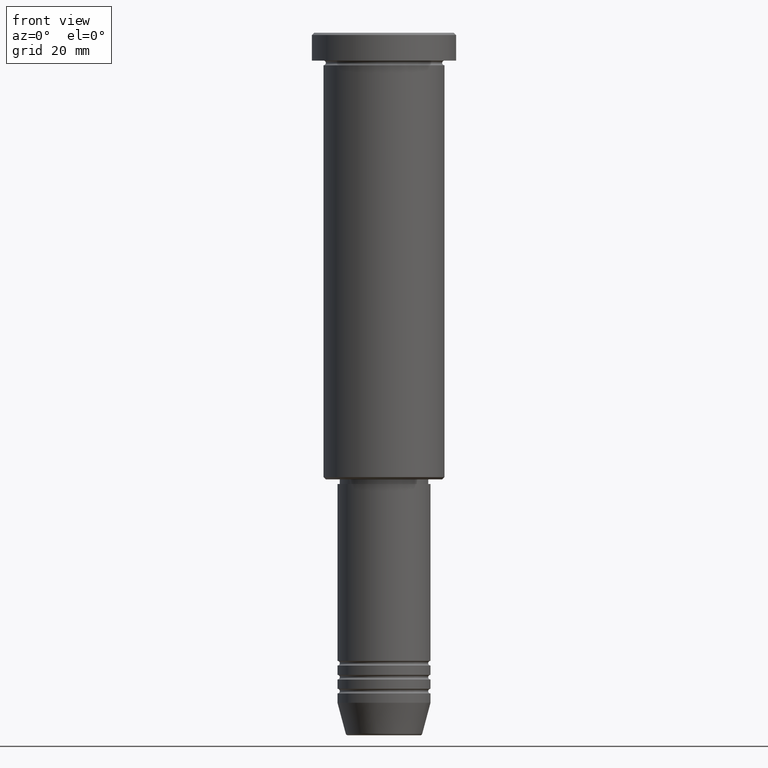
[diagram: clean part render]
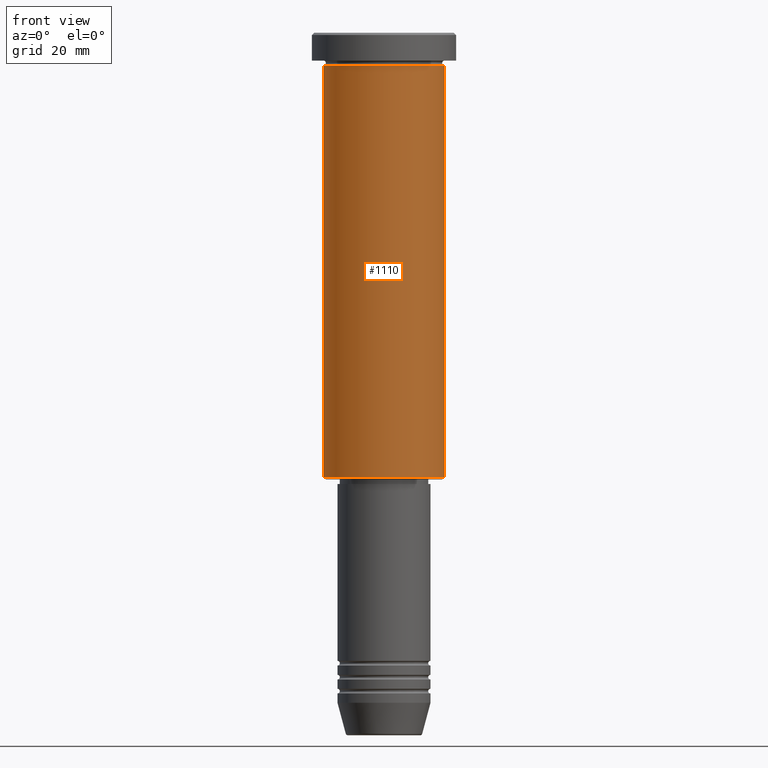
[diagram: same view with one face highlighted and labeled with its STEP entity id]
A machine part, front view. The second image highlights one B-rep face of the part: STEP entity #1110.
In plain terms, the highlighted cylindrical surface (partial cylindrical patch) has radius 13 mm, axis along (-0, -0, 1).
Its self-contained STEP definition (entity closure, byte-faithful):
#18 = EDGE_CURVE ( 'NONE', #555, #154, #625, .T. ) ;
#101 = CARTESIAN_POINT ( 'NONE',  ( -13.00000000000000000, 1.592040838891559095E-15, 0.000000000000000000 ) ) ;
#106 = CARTESIAN_POINT ( 'NONE',  ( 0.000000000000000000, 0.000000000000000000, -6.999999999999995559 ) ) ;
#142 = DIRECTION ( 'NONE',  ( -0.000000000000000000, -0.000000000000000000, 1.000000000000000000 ) ) ;
#154 = VERTEX_POINT ( 'NONE', #652 ) ;
#207 = CARTESIAN_POINT ( 'NONE',  ( -13.00000000000000000, 1.592040838891559095E-15, -95.50000000000001421 ) ) ;
#269 = EDGE_CURVE ( 'NONE', #555, #374, #1091, .T. ) ;
#282 = ORIENTED_EDGE ( 'NONE', *, *, #1078, .F. ) ;
#303 = DIRECTION ( 'NONE',  ( 1.000000000000000000, 0.000000000000000000, 0.000000000000000000 ) ) ;
#321 = ORIENTED_EDGE ( 'NONE', *, *, #626, .T. ) ;
#332 = DIRECTION ( 'NONE',  ( -1.000000000000000000, 0.000000000000000000, 0.000000000000000000 ) ) ;
#350 = VECTOR ( 'NONE', #1108, 1000.000000000000000 ) ;
#374 = VERTEX_POINT ( 'NONE', #1160 ) ;
#428 = CYLINDRICAL_SURFACE ( 'NONE', #716, 13.00000000000000000 ) ;
#488 = CIRCLE ( 'NONE', #698, 13.00000000000000000 ) ;
#555 = VERTEX_POINT ( 'NONE', #207 ) ;
#595 = CARTESIAN_POINT ( 'NONE',  ( 0.000000000000000000, 0.000000000000000000, 0.000000000000000000 ) ) ;
#597 = DIRECTION ( 'NONE',  ( -0.000000000000000000, -0.000000000000000000, 1.000000000000000000 ) ) ;
#625 = LINE ( 'NONE', #101, #1148 ) ;
#626 = EDGE_CURVE ( 'NONE', #374, #649, #841, .T. ) ;
#649 = VERTEX_POINT ( 'NONE', #1104 ) ;
#652 = CARTESIAN_POINT ( 'NONE',  ( -13.00000000000000000, 1.592040838891559095E-15, -6.999999999999995559 ) ) ;
#698 = AXIS2_PLACEMENT_3D ( 'NONE', #106, #1107, #748 ) ;
#716 = AXIS2_PLACEMENT_3D ( 'NONE', #595, #142, #303 ) ;
#728 = DIRECTION ( 'NONE',  ( -0.000000000000000000, -0.000000000000000000, 1.000000000000000000 ) ) ;
#744 = CARTESIAN_POINT ( 'NONE',  ( 13.00000000000000000, 0.000000000000000000, 0.000000000000000000 ) ) ;
#748 = DIRECTION ( 'NONE',  ( 1.000000000000000000, 0.000000000000000000, 0.000000000000000000 ) ) ;
#841 = LINE ( 'NONE', #744, #350 ) ;
#880 = ORIENTED_EDGE ( 'NONE', *, *, #18, .F. ) ;
#900 = ORIENTED_EDGE ( 'NONE', *, *, #269, .T. ) ;
#916 = AXIS2_PLACEMENT_3D ( 'NONE', #1138, #597, #332 ) ;
#953 = FACE_OUTER_BOUND ( 'NONE', #1140, .T. ) ;
#1078 = EDGE_CURVE ( 'NONE', #154, #649, #488, .T. ) ;
#1091 = CIRCLE ( 'NONE', #916, 13.00000000000000000 ) ;
#1104 = CARTESIAN_POINT ( 'NONE',  ( 13.00000000000000000, 0.000000000000000000, -6.999999999999995559 ) ) ;
#1107 = DIRECTION ( 'NONE',  ( -0.000000000000000000, -0.000000000000000000, 1.000000000000000000 ) ) ;
#1108 = DIRECTION ( 'NONE',  ( -0.000000000000000000, -0.000000000000000000, 1.000000000000000000 ) ) ;
#1110 = ADVANCED_FACE ( 'NONE', ( #953 ), #428, .T. ) ;
#1138 = CARTESIAN_POINT ( 'NONE',  ( 0.000000000000000000, 0.000000000000000000, -95.50000000000001421 ) ) ;
#1140 = EDGE_LOOP ( 'NONE', ( #880, #900, #321, #282 ) ) ;
#1148 = VECTOR ( 'NONE', #728, 1000.000000000000000 ) ;
#1160 = CARTESIAN_POINT ( 'NONE',  ( 13.00000000000000000, 0.000000000000000000, -95.50000000000001421 ) ) ;